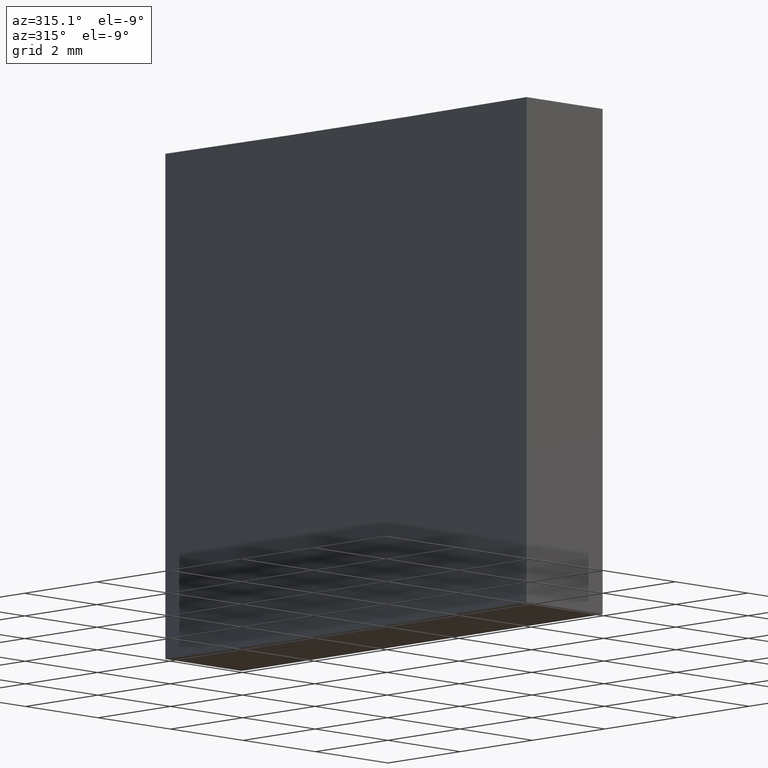
[diagram: clean part render]
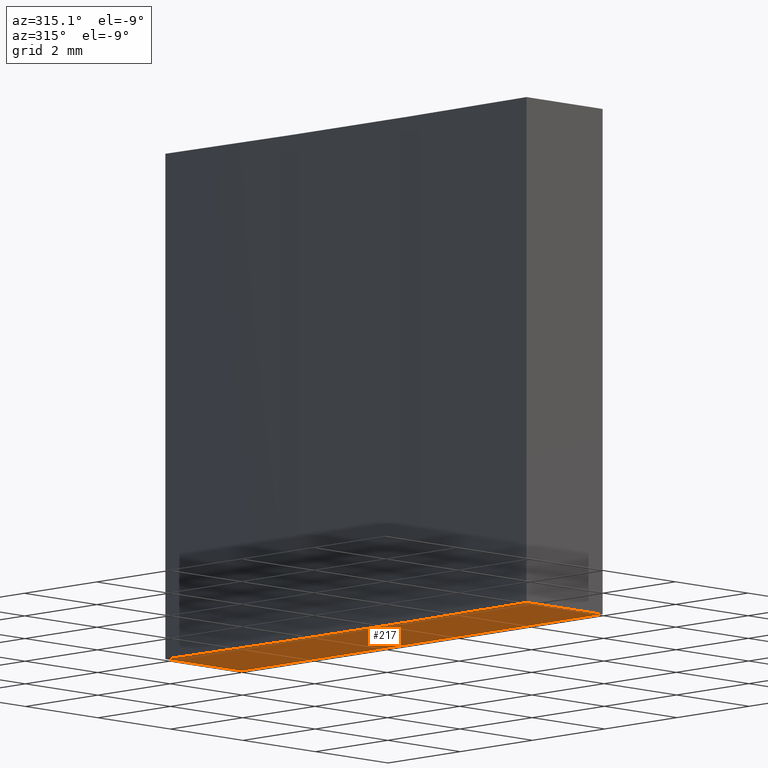
[diagram: same view with one face highlighted and labeled with its STEP entity id]
A machine part, auxiliary view. The second image highlights one B-rep face of the part: STEP entity #217.
In plain terms, the highlighted planar face has unit normal (0, 0, 1).
Its self-contained STEP definition (entity closure, byte-faithful):
#3 = CARTESIAN_POINT ( 'NONE',  ( 96.71095150400097396, -65.16139251231673768, 0.000000000000000000 ) ) ;
#11 = CARTESIAN_POINT ( 'NONE',  ( 98.81095150400096827, -55.16139251231674479, 0.000000000000000000 ) ) ;
#15 = DIRECTION ( 'NONE',  ( 1.000000000000000000, 0.000000000000000000, 0.000000000000000000 ) ) ;
#21 = CARTESIAN_POINT ( 'NONE',  ( -32.44230048757687257, -60.16139251231674479, 0.000000000000000000 ) ) ;
#31 = LINE ( 'NONE', #141, #106 ) ;
#32 = CARTESIAN_POINT ( 'NONE',  ( 96.71095150400097396, -65.16139251231673768, 0.000000000000000000 ) ) ;
#36 = FACE_OUTER_BOUND ( 'NONE', #203, .T. ) ;
#38 = AXIS2_PLACEMENT_3D ( 'NONE', #68, #66, #15 ) ;
#48 = EDGE_CURVE ( 'NONE', #112, #96, #195, .T. ) ;
#66 = DIRECTION ( 'NONE',  ( -0.000000000000000000, -0.000000000000000000, -1.000000000000000000 ) ) ;
#68 = CARTESIAN_POINT ( 'NONE',  ( -32.44230048757687257, -60.16139251231674479, 0.000000000000000000 ) ) ;
#70 = VERTEX_POINT ( 'NONE', #32 ) ;
#71 = VECTOR ( 'NONE', #146, 1000.000000000000000 ) ;
#73 = DIRECTION ( 'NONE',  ( 1.000000000000000000, -6.608470384673492648E-15, 0.000000000000000000 ) ) ;
#74 = ORIENTED_EDGE ( 'NONE', *, *, #107, .F. ) ;
#83 = ORIENTED_EDGE ( 'NONE', *, *, #227, .F. ) ;
#86 = EDGE_CURVE ( 'NONE', #105, #70, #207, .T. ) ;
#88 = ORIENTED_EDGE ( 'NONE', *, *, #86, .F. ) ;
#91 = CARTESIAN_POINT ( 'NONE',  ( 98.81095150400098248, -65.16139251231675189, 0.000000000000000000 ) ) ;
#92 = DIRECTION ( 'NONE',  ( 1.000000000000000000, 0.000000000000000000, -0.000000000000000000 ) ) ;
#96 = VERTEX_POINT ( 'NONE', #232 ) ;
#105 = VERTEX_POINT ( 'NONE', #237 ) ;
#106 = VECTOR ( 'NONE', #176, 1000.000000000000000 ) ;
#107 = EDGE_CURVE ( 'NONE', #96, #105, #31, .T. ) ;
#112 = VERTEX_POINT ( 'NONE', #91 ) ;
#114 = ORIENTED_EDGE ( 'NONE', *, *, #48, .F. ) ;
#141 = CARTESIAN_POINT ( 'NONE',  ( 96.71095150400097396, -55.16139251231674479, 0.000000000000000000 ) ) ;
#146 = DIRECTION ( 'NONE',  ( -1.387778780781444492E-15, 1.000000000000000000, -0.000000000000000000 ) ) ;
#149 = LINE ( 'NONE', #3, #233 ) ;
#166 = AXIS2_PLACEMENT_3D ( 'NONE', #21, #220, #92 ) ;
#176 = DIRECTION ( 'NONE',  ( -1.000000000000000000, -0.000000000000000000, -0.000000000000000000 ) ) ;
#195 = LINE ( 'NONE', #11, #71 ) ;
#203 = EDGE_LOOP ( 'NONE', ( #88, #74, #114, #83 ) ) ;
#207 = CIRCLE ( 'NONE', #38, 129.2500000000000284 ) ;
#217 = ADVANCED_FACE ( 'NONE', ( #36 ), #223, .F. ) ;
#220 = DIRECTION ( 'NONE',  ( 0.000000000000000000, 0.000000000000000000, 1.000000000000000000 ) ) ;
#223 = PLANE ( 'NONE',  #166 ) ;
#227 = EDGE_CURVE ( 'NONE', #70, #112, #149, .T. ) ;
#232 = CARTESIAN_POINT ( 'NONE',  ( 98.81095150400096827, -55.16139251231674479, 0.000000000000000000 ) ) ;
#233 = VECTOR ( 'NONE', #73, 1000.000000000000000 ) ;
#237 = CARTESIAN_POINT ( 'NONE',  ( 96.71095150400097396, -55.16139251231674479, 0.000000000000000000 ) ) ;